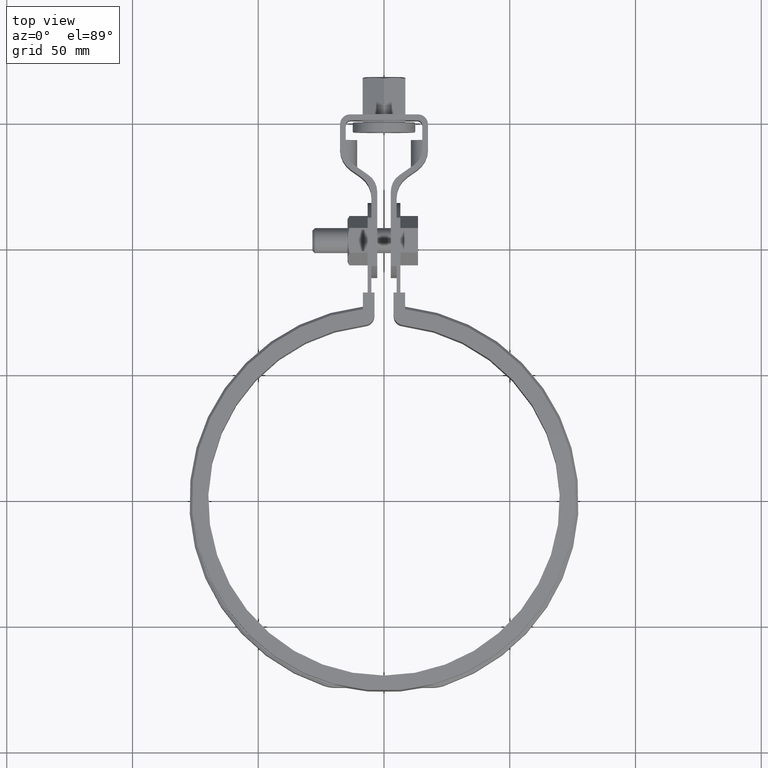
[diagram: clean part render]
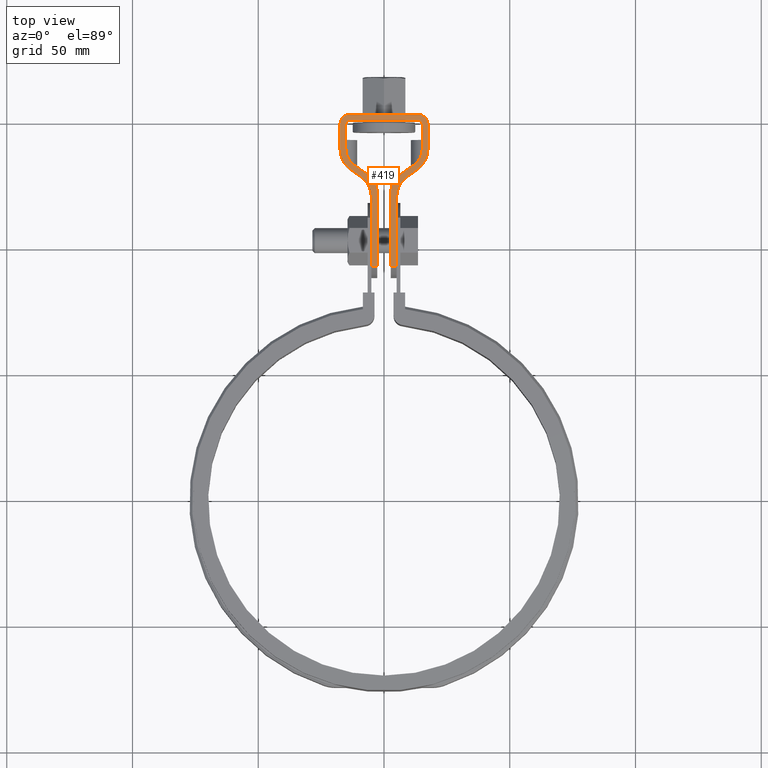
[diagram: same view with one face highlighted and labeled with its STEP entity id]
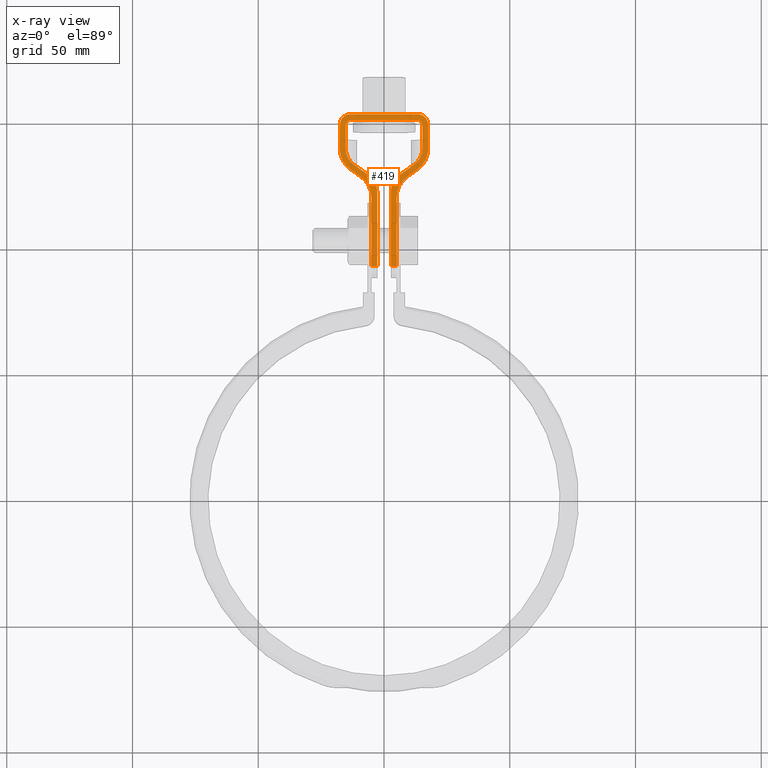
[diagram: x-ray of the same camera — body ghosted, the highlighted face saturated]
A machine part, top view. The second image highlights one B-rep face of the part: STEP entity #419.
The next image is the same camera in x-ray: the body ghosted, the highlighted face saturated — about 0% of this face is hidden behind the body in this view.
In plain terms, the highlighted planar face has unit normal (0, 0, 1).
Its self-contained STEP definition (entity closure, byte-faithful):
#419 = ADVANCED_FACE( '', ( #711 ), #712, .T. );
#711 = FACE_OUTER_BOUND( '', #1846, .T. );
#712 = PLANE( '', #1847 );
#1846 = EDGE_LOOP( '', ( #4389, #4390, #4391, #4392, #4393, #4394, #4395, #4396, #4397, #4398, #4399, #4400, #4401, #4402, #4403, #4404, #4405, #4406, #4407, #4408, #4409, #4410, #4411, #4412, #4413, #4414, #4415, #4416 ) );
#1847 = AXIS2_PLACEMENT_3D( '', #4417, #4418, #4419 );
#4389 = ORIENTED_EDGE( '', *, *, #5274, .T. );
#4390 = ORIENTED_EDGE( '', *, *, #5275, .T. );
#4391 = ORIENTED_EDGE( '', *, *, #5276, .T. );
#4392 = ORIENTED_EDGE( '', *, *, #5277, .T. );
#4393 = ORIENTED_EDGE( '', *, *, #5278, .T. );
#4394 = ORIENTED_EDGE( '', *, *, #5272, .T. );
#4395 = ORIENTED_EDGE( '', *, *, #5268, .T. );
#4396 = ORIENTED_EDGE( '', *, *, #5279, .T. );
#4397 = ORIENTED_EDGE( '', *, *, #5280, .T. );
#4398 = ORIENTED_EDGE( '', *, *, #5262, .T. );
#4399 = ORIENTED_EDGE( '', *, *, #5255, .T. );
#4400 = ORIENTED_EDGE( '', *, *, #5245, .T. );
#4401 = ORIENTED_EDGE( '', *, *, #5254, .T. );
#4402 = ORIENTED_EDGE( '', *, *, #5259, .T. );
#4403 = ORIENTED_EDGE( '', *, *, #5281, .T. );
#4404 = ORIENTED_EDGE( '', *, *, #5282, .T. );
#4405 = ORIENTED_EDGE( '', *, *, #5283, .T. );
#4406 = ORIENTED_EDGE( '', *, *, #5284, .T. );
#4407 = ORIENTED_EDGE( '', *, *, #5285, .T. );
#4408 = ORIENTED_EDGE( '', *, *, #5215, .T. );
#4409 = ORIENTED_EDGE( '', *, *, #5212, .T. );
#4410 = ORIENTED_EDGE( '', *, *, #5202, .T. );
#4411 = ORIENTED_EDGE( '', *, *, #5286, .T. );
#4412 = ORIENTED_EDGE( '', *, *, #5287, .T. );
#4413 = ORIENTED_EDGE( '', *, *, #5288, .T. );
#4414 = ORIENTED_EDGE( '', *, *, #5249, .T. );
#4415 = ORIENTED_EDGE( '', *, *, #5289, .T. );
#4416 = ORIENTED_EDGE( '', *, *, #5290, .T. );
#4417 = CARTESIAN_POINT( '', ( 13.5000000000000, 149.297141712794, -3.46944695195361E-015 ) );
#4418 = DIRECTION( '', ( 0.000000000000000, 0.000000000000000, 1.00000000000000 ) );
#4419 = DIRECTION( '', ( 0.000000000000000, 1.00000000000000, 0.000000000000000 ) );
#5202 = EDGE_CURVE( '', #5830, #5831, #5832, .T. );
#5212 = EDGE_CURVE( '', #5839, #5830, #5850, .T. );
#5215 = EDGE_CURVE( '', #5852, #5839, #5855, .T. );
#5245 = EDGE_CURVE( '', #5907, #5905, #5908, .T. );
#5249 = EDGE_CURVE( '', #5910, #5912, #5914, .T. );
#5254 = EDGE_CURVE( '', #5905, #5920, #5922, .T. );
#5255 = EDGE_CURVE( '', #5923, #5907, #5924, .T. );
#5259 = EDGE_CURVE( '', #5920, #5929, #5930, .T. );
#5262 = EDGE_CURVE( '', #5934, #5923, #5935, .T. );
#5268 = EDGE_CURVE( '', #5945, #5943, #5946, .T. );
#5272 = EDGE_CURVE( '', #5950, #5945, #5951, .T. );
#5274 = EDGE_CURVE( '', #5953, #5954, #5955, .T. );
#5275 = EDGE_CURVE( '', #5954, #5956, #5957, .F. );
#5276 = EDGE_CURVE( '', #5956, #5958, #5959, .T. );
#5277 = EDGE_CURVE( '', #5958, #5960, #5961, .T. );
#5278 = EDGE_CURVE( '', #5960, #5950, #5962, .T. );
#5279 = EDGE_CURVE( '', #5943, #5963, #5964, .T. );
#5280 = EDGE_CURVE( '', #5963, #5934, #5965, .T. );
#5281 = EDGE_CURVE( '', #5929, #5966, #5967, .T. );
#5282 = EDGE_CURVE( '', #5966, #5968, #5969, .F. );
#5283 = EDGE_CURVE( '', #5968, #5970, #5971, .T. );
#5284 = EDGE_CURVE( '', #5970, #5972, #5973, .T. );
#5285 = EDGE_CURVE( '', #5972, #5852, #5974, .T. );
#5286 = EDGE_CURVE( '', #5831, #5975, #5976, .T. );
#5287 = EDGE_CURVE( '', #5975, #5977, #5978, .T. );
#5288 = EDGE_CURVE( '', #5977, #5910, #5979, .T. );
#5289 = EDGE_CURVE( '', #5912, #5980, #5981, .T. );
#5290 = EDGE_CURVE( '', #5980, #5953, #5982, .T. );
#5830 = VERTEX_POINT( '', #8537 );
#5831 = VERTEX_POINT( '', #8538 );
#5832 = CIRCLE( '', #8539, 4.00000000000000 );
#5839 = VERTEX_POINT( '', #8548 );
#5850 = LINE( '', #8565, #8566 );
#5852 = VERTEX_POINT( '', #8568 );
#5855 = CIRCLE( '', #8591, 10.0000000000000 );
#5905 = VERTEX_POINT( '', #8755 );
#5907 = VERTEX_POINT( '', #8758 );
#5908 = CIRCLE( '', #8759, 8.00000000000000 );
#5910 = VERTEX_POINT( '', #8762 );
#5912 = VERTEX_POINT( '', #8765 );
#5914 = CIRCLE( '', #8768, 10.0000000000000 );
#5920 = VERTEX_POINT( '', #8776 );
#5922 = LINE( '', #8779, #8780 );
#5923 = VERTEX_POINT( '', #8781 );
#5924 = LINE( '', #8782, #8783 );
#5929 = VERTEX_POINT( '', #8791 );
#5930 = CIRCLE( '', #8792, 8.00000000000000 );
#5934 = VERTEX_POINT( '', #8797 );
#5935 = CIRCLE( '', #8798, 2.00000000000000 );
#5943 = VERTEX_POINT( '', #8809 );
#5945 = VERTEX_POINT( '', #8812 );
#5946 = LINE( '', #8813, #8814 );
#5950 = VERTEX_POINT( '', #8821 );
#5951 = CIRCLE( '', #8822, 8.00000000000000 );
#5953 = VERTEX_POINT( '', #8825 );
#5954 = VERTEX_POINT( '', #8826 );
#5955 = LINE( '', #8827, #8828 );
#5956 = VERTEX_POINT( '', #8829 );
#5957 = LINE( '', #8830, #8831 );
#5958 = VERTEX_POINT( '', #8832 );
#5959 = LINE( '', #8833, #8834 );
#5960 = VERTEX_POINT( '', #8835 );
#5961 = CIRCLE( '', #8836, 8.00000000000000 );
#5962 = LINE( '', #8837, #8838 );
#5963 = VERTEX_POINT( '', #8839 );
#5964 = CIRCLE( '', #8840, 2.00000000000000 );
#5965 = LINE( '', #8841, #8842 );
#5966 = VERTEX_POINT( '', #8843 );
#5967 = LINE( '', #8844, #8845 );
#5968 = VERTEX_POINT( '', #8846 );
#5969 = LINE( '', #8847, #8848 );
#5970 = VERTEX_POINT( '', #8849 );
#5971 = LINE( '', #8850, #8851 );
#5972 = VERTEX_POINT( '', #8852 );
#5973 = CIRCLE( '', #8853, 10.0000000000000 );
#5974 = LINE( '', #8854, #8855 );
#5975 = VERTEX_POINT( '', #8856 );
#5976 = LINE( '', #8857, #8858 );
#5977 = VERTEX_POINT( '', #8859 );
#5978 = CIRCLE( '', #8860, 4.00000000000000 );
#5979 = LINE( '', #8861, #8862 );
#5980 = VERTEX_POINT( '', #8863 );
#5981 = LINE( '', #8864, #8865 );
#5982 = CIRCLE( '', #8866, 10.0000000000000 );
#8537 = CARTESIAN_POINT( '', ( 17.5000000000000, 149.297141712794, -3.46944695195361E-015 ) );
#8538 = CARTESIAN_POINT( '', ( 13.5000000000000, 153.297141712794, -3.46944695195361E-015 ) );
#8539 = AXIS2_PLACEMENT_3D( '', #9587, #9588, #9589 );
#8548 = CARTESIAN_POINT( '', ( 17.5000000000000, 139.502812218311, -3.46944695195361E-015 ) );
#8565 = CARTESIAN_POINT( '', ( 17.5000000000000, 139.502812218311, -3.46944695195361E-015 ) );
#8566 = VECTOR( '', #9601, 1000.00000000000 );
#8568 = CARTESIAN_POINT( '', ( 13.2357643635105, 131.311291775421, -3.46944695195361E-015 ) );
#8591 = AXIS2_PLACEMENT_3D( '', #9603, #9604, #9605 );
#8755 = CARTESIAN_POINT( '', ( 11.7886114908084, 133.105765979165, -3.46944695195361E-015 ) );
#8758 = CARTESIAN_POINT( '', ( 15.2000000000000, 139.658982333476, -3.46944695195361E-015 ) );
#8759 = AXIS2_PLACEMENT_3D( '', #9653, #9654, #9655 );
#8762 = CARTESIAN_POINT( '', ( -17.5000000000000, 139.502812218311, -3.46944695195361E-015 ) );
#8765 = CARTESIAN_POINT( '', ( -13.2357643635105, 131.311291775421, -3.46944695195361E-015 ) );
#8768 = AXIS2_PLACEMENT_3D( '', #9659, #9660, #9661 );
#8776 = CARTESIAN_POINT( '', ( 6.11138850919165, 129.130531651339, -3.46944695195361E-015 ) );
#8779 = CARTESIAN_POINT( '', ( 11.7886114908084, 133.105765979165, -3.46944695195361E-015 ) );
#8780 = VECTOR( '', #9668, 1000.00000000000 );
#8781 = CARTESIAN_POINT( '', ( 15.2000000000000, 148.997141712794, -3.46944695195361E-015 ) );
#8782 = CARTESIAN_POINT( '', ( 15.2000000000000, 148.997141712794, -3.46944695195361E-015 ) );
#8783 = VECTOR( '', #9669, 1000.00000000000 );
#8791 = CARTESIAN_POINT( '', ( 2.70000000000002, 122.577315297027, -3.46944695195361E-015 ) );
#8792 = AXIS2_PLACEMENT_3D( '', #9673, #9674, #9675 );
#8797 = CARTESIAN_POINT( '', ( 13.2000000000000, 150.997141712794, -3.46944695195361E-015 ) );
#8798 = AXIS2_PLACEMENT_3D( '', #9680, #9681, #9682 );
#8809 = CARTESIAN_POINT( '', ( -15.2000000000000, 148.997141712794, -3.46944695195361E-015 ) );
#8812 = CARTESIAN_POINT( '', ( -15.2000000000000, 139.658982333477, -3.46944695195361E-015 ) );
#8813 = CARTESIAN_POINT( '', ( -15.2000000000000, 139.658982333476, -3.46944695195361E-015 ) );
#8814 = VECTOR( '', #9690, 1000.00000000000 );
#8821 = CARTESIAN_POINT( '', ( -11.7886114908084, 133.105765979165, -3.46944695195361E-015 ) );
#8822 = AXIS2_PLACEMENT_3D( '', #9694, #9695, #9696 );
#8825 = CARTESIAN_POINT( '', ( -4.99999999999996, 120.338876979655, -3.46944695195361E-015 ) );
#8826 = CARTESIAN_POINT( '', ( -4.99999999999998, 92.9199866318945, -2.08166817117217E-014 ) );
#8827 = CARTESIAN_POINT( '', ( -4.99999999999999, 120.338876979655, -3.46944695195361E-015 ) );
#8828 = VECTOR( '', #9698, 1000.00000000000 );
#8829 = CARTESIAN_POINT( '', ( -2.69999999999999, 92.9199866318945, -3.46944695195361E-015 ) );
#8830 = CARTESIAN_POINT( '', ( 81.1487655465077, 92.9199866318945, -3.46944695195361E-015 ) );
#8831 = VECTOR( '', #9699, 1000.00000000000 );
#8832 = CARTESIAN_POINT( '', ( -2.69999999999999, 122.577315297027, -3.46944695195361E-015 ) );
#8833 = CARTESIAN_POINT( '', ( -2.70000000000000, 88.2971417127935, -3.46944695195361E-015 ) );
#8834 = VECTOR( '', #9700, 1000.00000000000 );
#8835 = CARTESIAN_POINT( '', ( -6.11138850919162, 129.130531651339, -3.46944695195361E-015 ) );
#8836 = AXIS2_PLACEMENT_3D( '', #9701, #9702, #9703 );
#8837 = CARTESIAN_POINT( '', ( -6.11138850919165, 129.130531651339, -3.46944695195361E-015 ) );
#8838 = VECTOR( '', #9704, 1000.00000000000 );
#8839 = CARTESIAN_POINT( '', ( -13.2000000000000, 150.997141712794, -3.46944695195361E-015 ) );
#8840 = AXIS2_PLACEMENT_3D( '', #9705, #9706, #9707 );
#8841 = CARTESIAN_POINT( '', ( -13.2000000000000, 150.997141712794, -3.46944695195361E-015 ) );
#8842 = VECTOR( '', #9708, 1000.00000000000 );
#8843 = CARTESIAN_POINT( '', ( 2.70000000000002, 92.9199866318945, -1.73472347597681E-014 ) );
#8844 = CARTESIAN_POINT( '', ( 2.70000000000001, 122.577315297027, -3.46944695195361E-015 ) );
#8845 = VECTOR( '', #9709, 1000.00000000000 );
#8846 = CARTESIAN_POINT( '', ( 5.00000000000000, 92.9199866318945, -3.46944695195361E-015 ) );
#8847 = CARTESIAN_POINT( '', ( 81.1487655465077, 92.9199866318945, -3.46944695195361E-015 ) );
#8848 = VECTOR( '', #9710, 1000.00000000000 );
#8849 = CARTESIAN_POINT( '', ( 5.00000000000001, 120.338876979655, -3.46944695195361E-015 ) );
#8850 = CARTESIAN_POINT( '', ( 5.00000000000000, 88.2971417127935, -3.46944695195361E-015 ) );
#8851 = VECTOR( '', #9711, 1000.00000000000 );
#8852 = CARTESIAN_POINT( '', ( 9.26423563648955, 128.530397422545, -3.46944695195361E-015 ) );
#8853 = AXIS2_PLACEMENT_3D( '', #9712, #9713, #9714 );
#8854 = CARTESIAN_POINT( '', ( 9.26423563648953, 128.530397422545, -3.46944695195361E-015 ) );
#8855 = VECTOR( '', #9715, 1000.00000000000 );
#8856 = CARTESIAN_POINT( '', ( -13.5000000000000, 153.297141712794, -3.46944695195361E-015 ) );
#8857 = CARTESIAN_POINT( '', ( 13.5000000000000, 153.297141712794, -3.46944695195361E-015 ) );
#8858 = VECTOR( '', #9716, 1000.00000000000 );
#8859 = CARTESIAN_POINT( '', ( -17.5000000000000, 149.297141712794, -3.46944695195361E-015 ) );
#8860 = AXIS2_PLACEMENT_3D( '', #9717, #9718, #9719 );
#8861 = CARTESIAN_POINT( '', ( -17.5000000000000, 149.297141712794, -3.46944695195361E-015 ) );
#8862 = VECTOR( '', #9720, 1000.00000000000 );
#8863 = CARTESIAN_POINT( '', ( -9.26423563648953, 128.530397422545, -3.46944695195361E-015 ) );
#8864 = CARTESIAN_POINT( '', ( -13.2357643635105, 131.311291775421, -3.46944695195361E-015 ) );
#8865 = VECTOR( '', #9721, 1000.00000000000 );
#8866 = AXIS2_PLACEMENT_3D( '', #9722, #9723, #9724 );
#9587 = CARTESIAN_POINT( '', ( 13.5000000000000, 149.297141712794, -3.46944695195361E-015 ) );
#9588 = DIRECTION( '', ( 0.000000000000000, 0.000000000000000, 1.00000000000000 ) );
#9589 = DIRECTION( '', ( 1.00000000000000, -2.16840434497101E-016, 0.000000000000000 ) );
#9601 = DIRECTION( '', ( 6.93889390390723E-017, 1.00000000000000, 0.000000000000000 ) );
#9603 = CARTESIAN_POINT( '', ( 7.50000000000001, 139.502812218311, -3.46944695195361E-015 ) );
#9604 = DIRECTION( '', ( 0.000000000000000, 0.000000000000000, 1.00000000000000 ) );
#9605 = DIRECTION( '', ( 0.573576436351046, -0.819152044288992, 0.000000000000000 ) );
#9653 = CARTESIAN_POINT( '', ( 7.20000000000001, 139.658982333476, -3.46944695195361E-015 ) );
#9654 = DIRECTION( '', ( 0.000000000000000, 0.000000000000000, -1.00000000000000 ) );
#9655 = DIRECTION( '', ( 1.00000000000000, 0.000000000000000, 0.000000000000000 ) );
#9659 = CARTESIAN_POINT( '', ( -7.49999999999999, 139.502812218311, -3.46944695195361E-015 ) );
#9660 = DIRECTION( '', ( 0.000000000000000, 0.000000000000000, 1.00000000000000 ) );
#9661 = DIRECTION( '', ( -1.00000000000000, -1.73472347597681E-016, 0.000000000000000 ) );
#9668 = DIRECTION( '', ( -0.819152044288992, -0.573576436351046, 0.000000000000000 ) );
#9669 = DIRECTION( '', ( -6.07153216591882E-017, -1.00000000000000, 0.000000000000000 ) );
#9673 = CARTESIAN_POINT( '', ( 10.7000000000000, 122.577315297027, -3.46944695195361E-015 ) );
#9674 = DIRECTION( '', ( 0.000000000000000, 0.000000000000000, 1.00000000000000 ) );
#9675 = DIRECTION( '', ( -0.573576436351046, 0.819152044288992, 0.000000000000000 ) );
#9680 = CARTESIAN_POINT( '', ( 13.2000000000000, 148.997141712794, -3.46944695195361E-015 ) );
#9681 = DIRECTION( '', ( 0.000000000000000, 0.000000000000000, -1.00000000000000 ) );
#9682 = DIRECTION( '', ( 0.000000000000000, 1.00000000000000, 0.000000000000000 ) );
#9690 = DIRECTION( '', ( 6.07153216591882E-017, 1.00000000000000, 0.000000000000000 ) );
#9694 = CARTESIAN_POINT( '', ( -7.20000000000001, 139.658982333476, -3.46944695195361E-015 ) );
#9695 = DIRECTION( '', ( 0.000000000000000, 0.000000000000000, -1.00000000000000 ) );
#9696 = DIRECTION( '', ( -0.573576436351046, -0.819152044288992, 0.000000000000000 ) );
#9698 = DIRECTION( '', ( -6.07153216591882E-017, -1.00000000000000, 0.000000000000000 ) );
#9699 = DIRECTION( '', ( -1.00000000000000, 0.000000000000000, -1.83690953073357E-016 ) );
#9700 = DIRECTION( '', ( 6.07153216591882E-017, 1.00000000000000, 0.000000000000000 ) );
#9701 = CARTESIAN_POINT( '', ( -10.7000000000000, 122.577315297027, -3.46944695195361E-015 ) );
#9702 = DIRECTION( '', ( 0.000000000000000, 0.000000000000000, 1.00000000000000 ) );
#9703 = DIRECTION( '', ( 1.00000000000000, 0.000000000000000, 0.000000000000000 ) );
#9704 = DIRECTION( '', ( -0.819152044288992, 0.573576436351046, 0.000000000000000 ) );
#9705 = CARTESIAN_POINT( '', ( -13.2000000000000, 148.997141712794, -3.46944695195361E-015 ) );
#9706 = DIRECTION( '', ( 0.000000000000000, 0.000000000000000, -1.00000000000000 ) );
#9707 = DIRECTION( '', ( -1.00000000000000, 0.000000000000000, 0.000000000000000 ) );
#9708 = DIRECTION( '', ( 1.00000000000000, 0.000000000000000, 0.000000000000000 ) );
#9709 = DIRECTION( '', ( -6.07153216591882E-017, -1.00000000000000, 0.000000000000000 ) );
#9710 = DIRECTION( '', ( -1.00000000000000, 0.000000000000000, -1.83690953073357E-016 ) );
#9711 = DIRECTION( '', ( 6.07153216591882E-017, 1.00000000000000, 0.000000000000000 ) );
#9712 = CARTESIAN_POINT( '', ( 15.0000000000000, 120.338876979655, -3.46944695195361E-015 ) );
#9713 = DIRECTION( '', ( 0.000000000000000, 0.000000000000000, -1.00000000000000 ) );
#9714 = DIRECTION( '', ( -1.00000000000000, 0.000000000000000, 0.000000000000000 ) );
#9715 = DIRECTION( '', ( 0.819152044288992, 0.573576436351046, 0.000000000000000 ) );
#9716 = DIRECTION( '', ( -1.00000000000000, 0.000000000000000, 0.000000000000000 ) );
#9717 = CARTESIAN_POINT( '', ( -13.5000000000000, 149.297141712794, -3.46944695195361E-015 ) );
#9718 = DIRECTION( '', ( 0.000000000000000, 0.000000000000000, 1.00000000000000 ) );
#9719 = DIRECTION( '', ( 0.000000000000000, 1.00000000000000, 0.000000000000000 ) );
#9720 = DIRECTION( '', ( -6.93889390390723E-017, -1.00000000000000, 0.000000000000000 ) );
#9721 = DIRECTION( '', ( 0.819152044288992, -0.573576436351046, 0.000000000000000 ) );
#9722 = CARTESIAN_POINT( '', ( -15.0000000000000, 120.338876979655, -3.46944695195361E-015 ) );
#9723 = DIRECTION( '', ( 0.000000000000000, 0.000000000000000, -1.00000000000000 ) );
#9724 = DIRECTION( '', ( 0.573576436351046, 0.819152044288992, 0.000000000000000 ) );